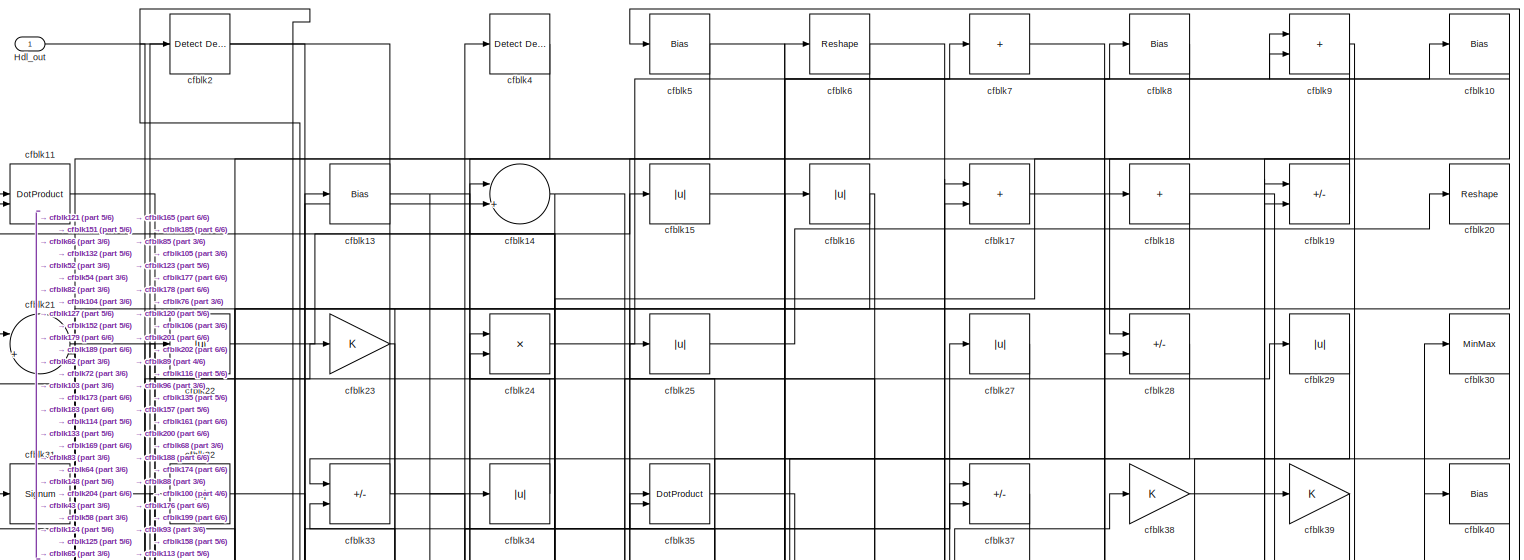
[diagram: root canvas - part 1/6, full width, top band]
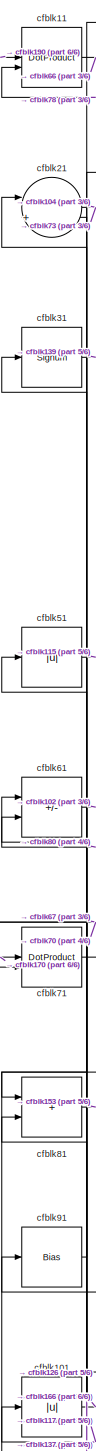
[diagram: root canvas - part 2/6, top left region]
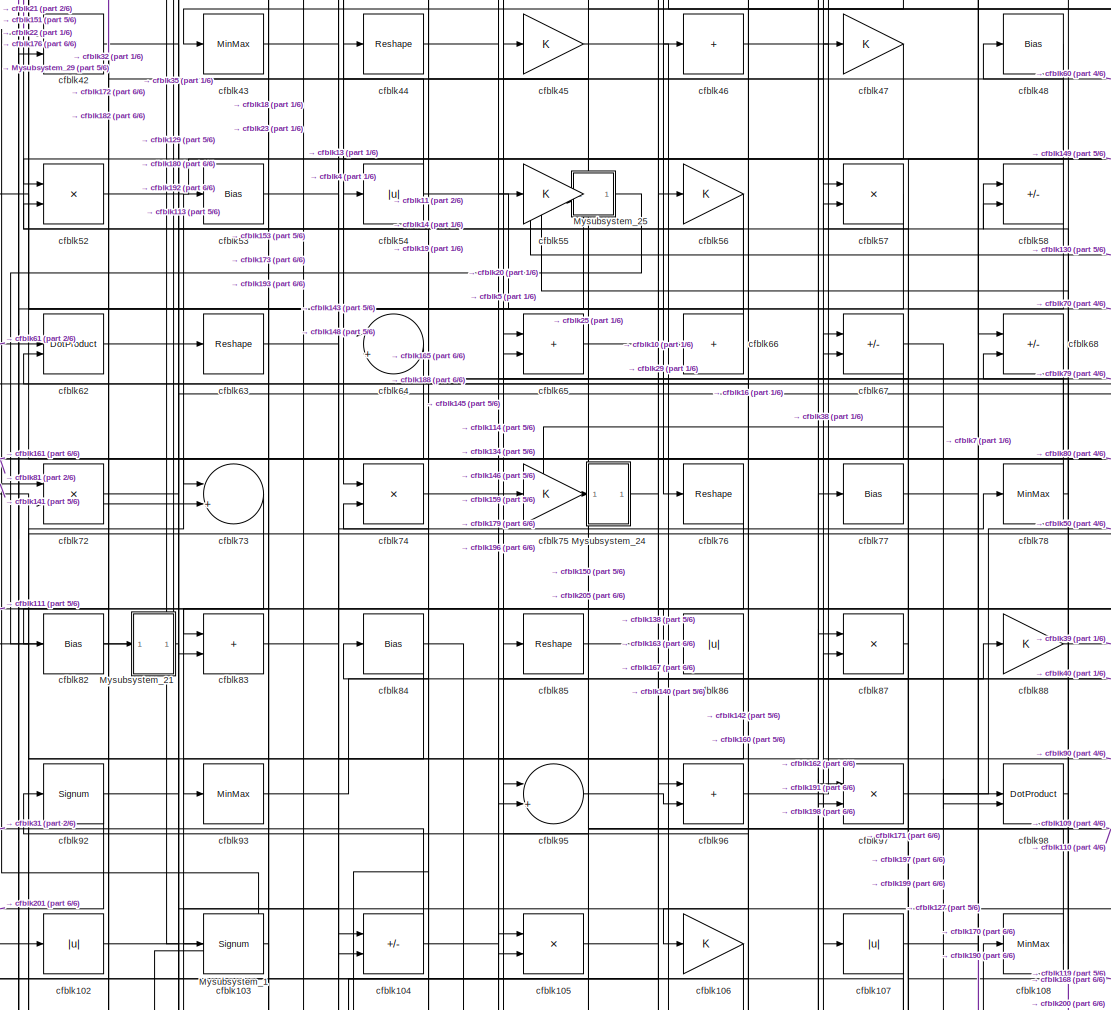
[diagram: root canvas - part 3/6, central region]
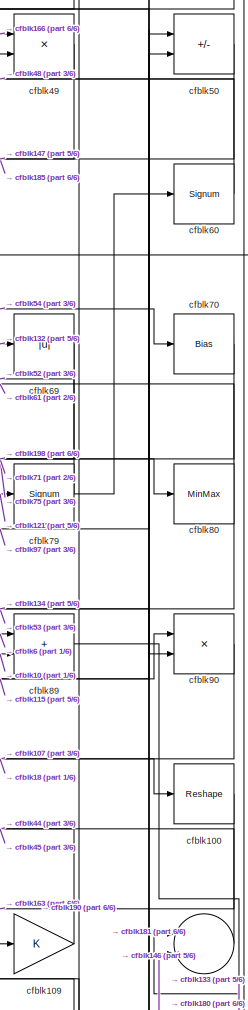
[diagram: root canvas - part 4/6, middle right region]
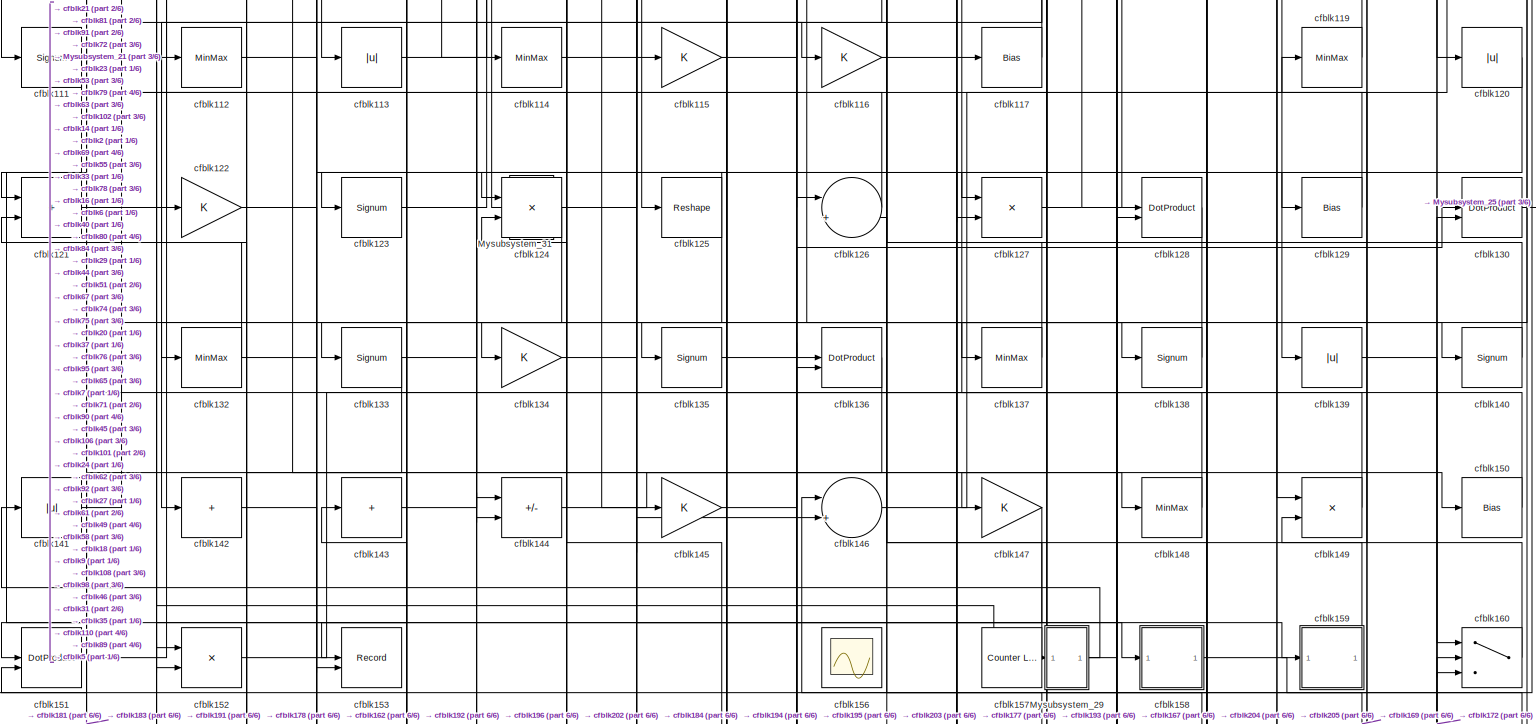
[diagram: root canvas - part 5/6, full width, middle band]
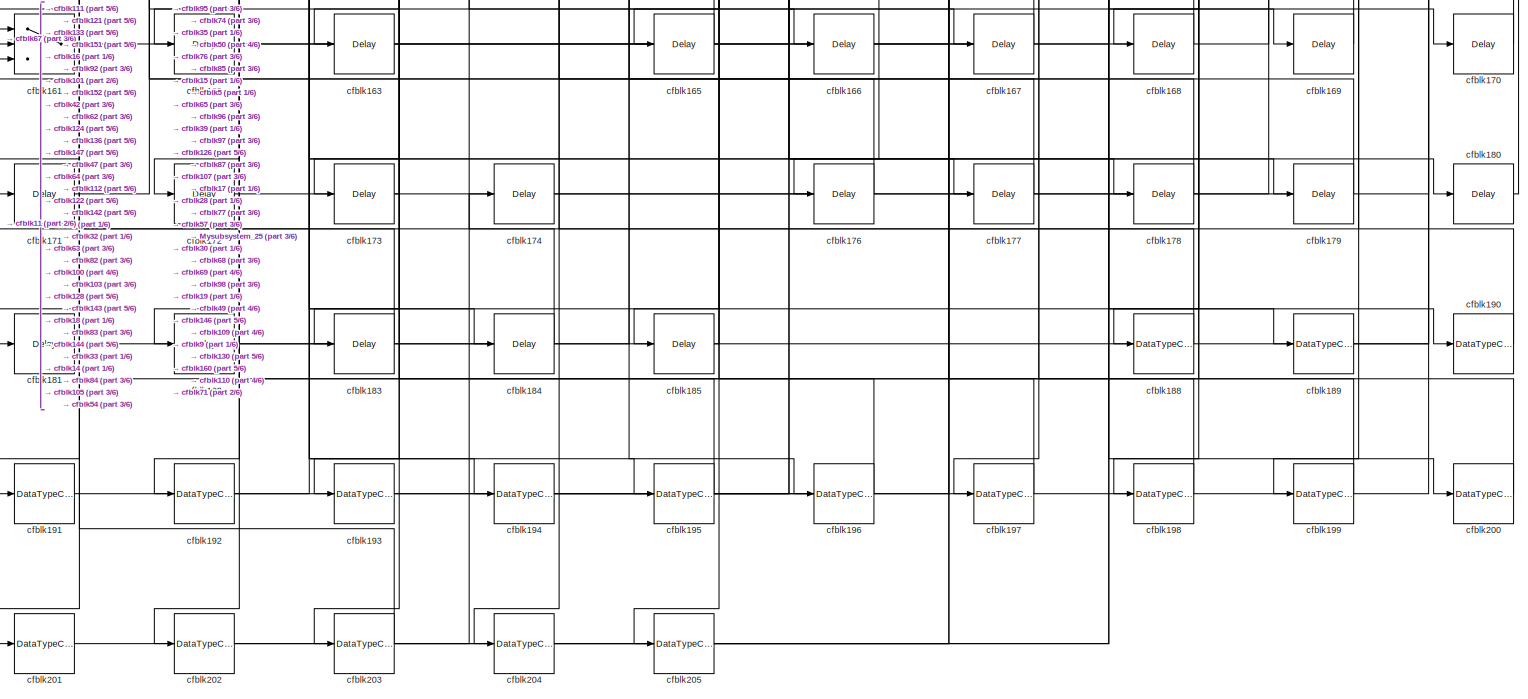
[diagram: root canvas - part 6/6, full width, bottom band]
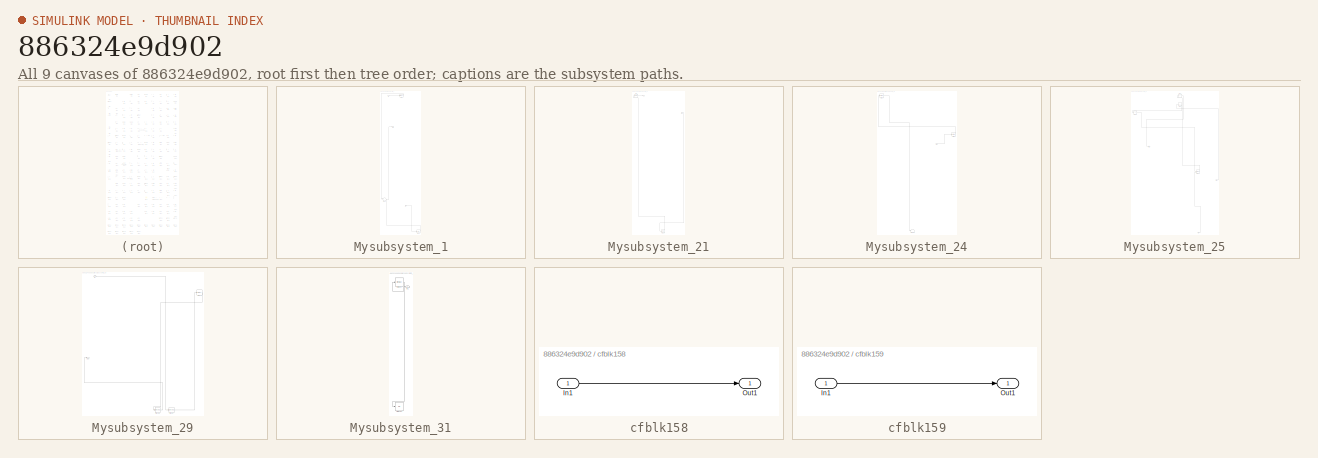
[diagram: thumbnail index - all 9 canvases of the model, root first then tree order]
MODEL slx_886324e9d902
KIND model
CONFIG AbsTol = auto
CONFIG EnableMultiTasking = off
CONFIG FixedStep = auto
CONFIG MaxStep = auto
CONFIG MinStep = auto
CONFIG RelTol = 1e-3
CONFIG SampleTimeConstraint = Unconstrained
CONFIG SolverName = VariableStepAuto
CONFIG StartTime = 0.0
CONFIG StopTime = 10.0
BLOCK [Outport] Hdl_out
  OutDataTypeStr = uint8
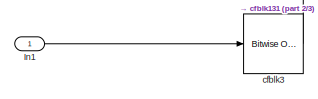
[diagram: Mysubsystem_1 - part 1/3, top center region]
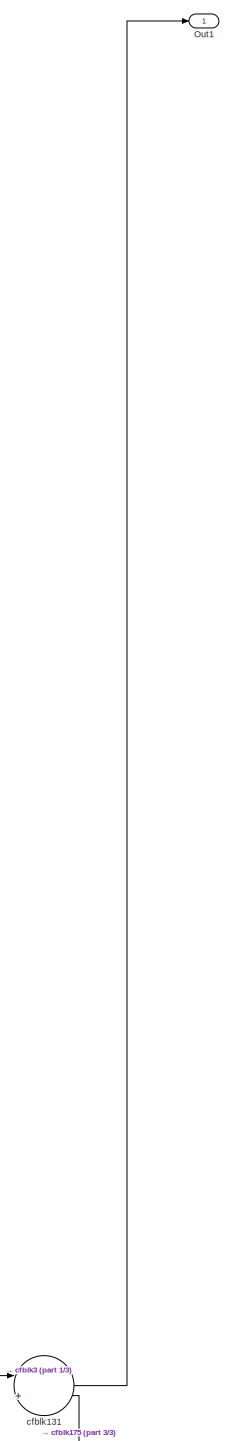
[diagram: Mysubsystem_1 - part 2/3, middle left region]
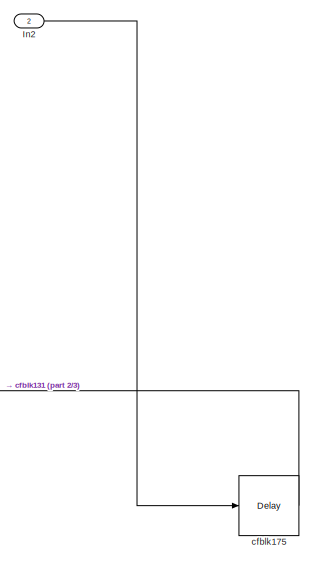
[diagram: Mysubsystem_1 - part 3/3, bottom right region]
BLOCK [SubSystem] Mysubsystem_1
  RTWFcnName = Mysubsystem_1
  RTWFcnNameOpts = User specified
  RTWFileNameOpts = Use function name
  RTWSystemCode = Reusable function
  TreatAsAtomicUnit = on
BLOCK [Inport] Mysubsystem_1/In1
BLOCK [Inport] Mysubsystem_1/In2
  Port = 2
BLOCK [Outport] Mysubsystem_1/Out1
BLOCK [Sum] Mysubsystem_1/cfblk131
  Inputs = |++
BLOCK [Delay] Mysubsystem_1/cfblk175
  InputPortMap = u0
  SampleTime = 1
BLOCK [Reference] Mysubsystem_1/cfblk3  REF=simulink/Logic and Bit
Operations/Bitwise
Operator
  LibrarySourceBlock = hdlsllib/Logic and Bit\nOperations/Bitwise\nOperator
  SourceBlock = simulink/Logic and Bit\nOperations/Bitwise\nOperator
  SourceType = Bitwise Operator
BLOCK [SubSystem] Mysubsystem_21
  RTWFcnName = Mysubsystem_21
  RTWFcnNameOpts = User specified
  RTWFileNameOpts = Use function name
  RTWSystemCode = Reusable function
  TreatAsAtomicUnit = on
BLOCK [Inport] Mysubsystem_21/In1
BLOCK [Outport] Mysubsystem_21/Y
BLOCK [Reference] Mysubsystem_21/cfblk1  REF=simulink/Logic and Bit
Operations/Detect
Decrease
  LibrarySourceBlock = hdlsllib/Logic and Bit\nOperations/Detect\nDecrease
  SourceBlock = simulink/Logic and Bit\nOperations/Detect\nDecrease
  SourceType = Detect Decrease
BLOCK [Delay] Mysubsystem_21/cfblk164
  InputPortMap = u0
  SampleTime = 1
BLOCK [SubSystem] Mysubsystem_24
  RTWFcnName = Mysubsystem_24
  RTWFcnNameOpts = User specified
  RTWFileNameOpts = Use function name
  RTWSystemCode = Reusable function
  TreatAsAtomicUnit = on
BLOCK [Inport] Mysubsystem_24/In1
BLOCK [MinMax] Mysubsystem_24/cfblk12
BLOCK [Terminator] Mysubsystem_24/cfblk155
BLOCK [MinMax] Mysubsystem_24/cfblk59
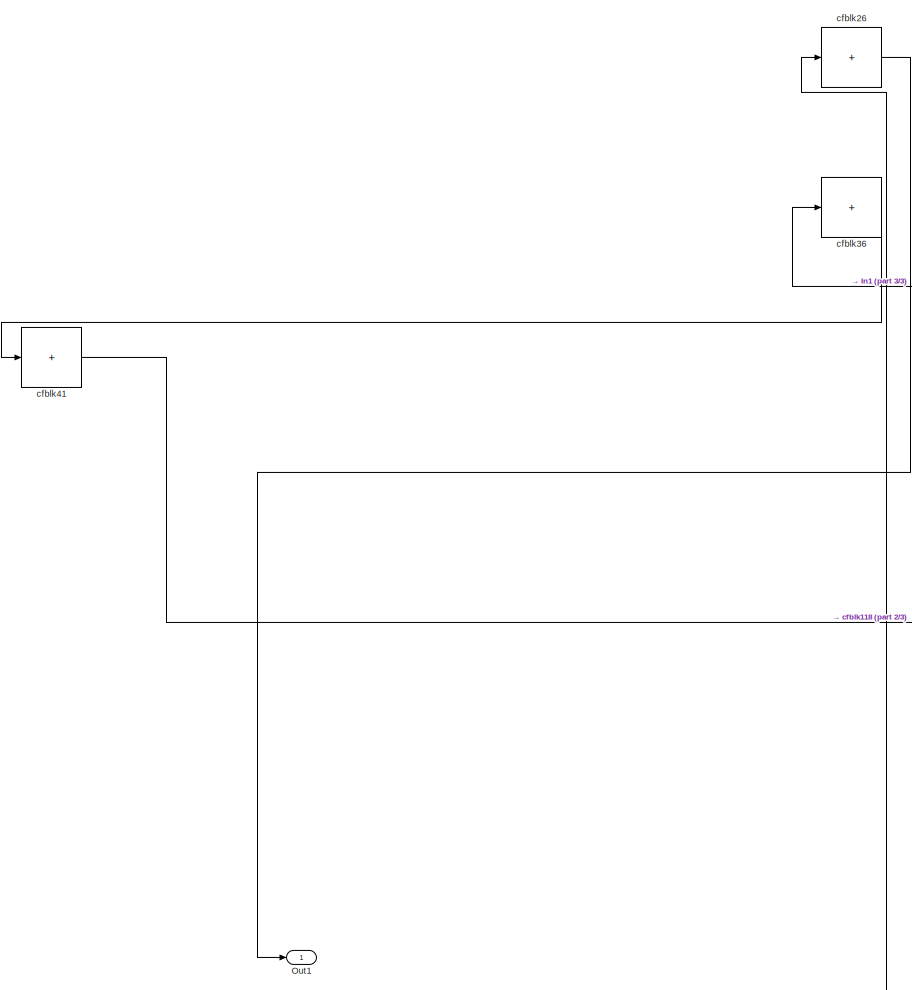
[diagram: Mysubsystem_25 - part 1/3, top left region]
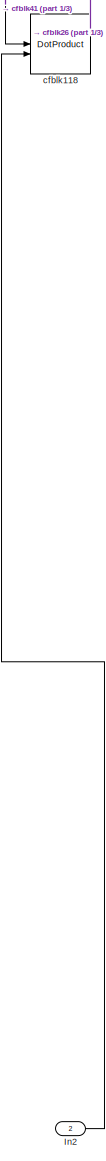
[diagram: Mysubsystem_25 - part 2/3, bottom right region]
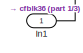
[diagram: Mysubsystem_25 - part 3/3, middle right region]
BLOCK [SubSystem] Mysubsystem_25
  RTWFcnName = Mysubsystem_25
  RTWFcnNameOpts = User specified
  RTWFileNameOpts = Use function name
  RTWSystemCode = Reusable function
  TreatAsAtomicUnit = on
BLOCK [Inport] Mysubsystem_25/In1
BLOCK [Inport] Mysubsystem_25/In2
  Port = 2
BLOCK [Outport] Mysubsystem_25/Out1
BLOCK [DotProduct] Mysubsystem_25/cfblk118
  OutDataTypeStr = Inherit: Inherit via internal rule
BLOCK [Sum] Mysubsystem_25/cfblk26
  IconShape = rectangular
  Inputs = +
BLOCK [Sum] Mysubsystem_25/cfblk36
  IconShape = rectangular
  Inputs = +
BLOCK [Sum] Mysubsystem_25/cfblk41
  IconShape = rectangular
  Inputs = +
BLOCK [SubSystem] Mysubsystem_29
  RTWFcnName = Mysubsystem_29
  RTWFcnNameOpts = User specified
  RTWFileNameOpts = Use function name
  RTWSystemCode = Reusable function
  TreatAsAtomicUnit = on
BLOCK [Inport] Mysubsystem_29/In1
BLOCK [Outport] Mysubsystem_29/Out1
BLOCK [DataTypeConversion] Mysubsystem_29/cfblk186
  OutDataTypeStr = uint8
  RndMeth = Floor
  SaturateOnIntegerOverflow = off
BLOCK [DataTypeConversion] Mysubsystem_29/cfblk187
  OutDataTypeStr = uint8
  RndMeth = Floor
  SaturateOnIntegerOverflow = off
BLOCK [MinMax] Mysubsystem_29/cfblk99
BLOCK [SubSystem] Mysubsystem_31
  RTWFcnName = Mysubsystem_31
  RTWFcnNameOpts = User specified
  RTWFileNameOpts = Use function name
  RTWSystemCode = Reusable function
  TreatAsAtomicUnit = on
BLOCK [Inport] Mysubsystem_31/In1
BLOCK [Display] Mysubsystem_31/cfblk154
  Decimation = 1
BLOCK [MinMax] Mysubsystem_31/cfblk94
BLOCK [Bias] cfblk10
  Bias = 0.0
  SaturateOnIntegerOverflow = off
BLOCK [Reshape] cfblk100
BLOCK [Abs] cfblk101
  OutDataTypeStr = uint8
  SaturateOnIntegerOverflow = off
BLOCK [Abs] cfblk102
  OutDataTypeStr = uint8
  SaturateOnIntegerOverflow = off
BLOCK [Signum] cfblk103
BLOCK [Sum] cfblk104
  IconShape = rectangular
  Inputs = +-
  OutDataTypeStr = uint8
BLOCK [Product] cfblk105
  Inputs = */
  OutDataTypeStr = uint8
  RndMeth = Zero
  SaturateOnIntegerOverflow = on
BLOCK [Gain] cfblk106
  OutDataTypeStr = uint8
BLOCK [Abs] cfblk107
  OutDataTypeStr = uint8
  SaturateOnIntegerOverflow = off
BLOCK [MinMax] cfblk108
  OutDataTypeStr = uint8
BLOCK [Gain] cfblk109
  OutDataTypeStr = uint8
BLOCK [DotProduct] cfblk11
  OutDataTypeStr = uint8
BLOCK [Sum] cfblk110
  Inputs = |++
  OutDataTypeStr = uint8
BLOCK [Signum] cfblk111
BLOCK [MinMax] cfblk112
  OutDataTypeStr = uint8
BLOCK [Abs] cfblk113
  OutDataTypeStr = uint8
  SaturateOnIntegerOverflow = off
BLOCK [MinMax] cfblk114
  OutDataTypeStr = uint8
BLOCK [Gain] cfblk115
  OutDataTypeStr = uint8
BLOCK [Gain] cfblk116
  OutDataTypeStr = uint8
BLOCK [Bias] cfblk117
  Bias = 0.0
  SaturateOnIntegerOverflow = off
BLOCK [MinMax] cfblk119
  OutDataTypeStr = uint8
BLOCK [Abs] cfblk120
  OutDataTypeStr = uint8
  SaturateOnIntegerOverflow = off
BLOCK [Sum] cfblk121
  IconShape = rectangular
  OutDataTypeStr = uint8
BLOCK [Gain] cfblk122
  OutDataTypeStr = uint8
BLOCK [Signum] cfblk123
BLOCK [Product] cfblk124
  Inputs = */
  OutDataTypeStr = uint8
  RndMeth = Zero
  SaturateOnIntegerOverflow = on
BLOCK [Reshape] cfblk125
BLOCK [Sum] cfblk126
  Inputs = |++
  OutDataTypeStr = uint8
BLOCK [Product] cfblk127
  Inputs = */
  OutDataTypeStr = uint8
  RndMeth = Zero
  SaturateOnIntegerOverflow = on
BLOCK [DotProduct] cfblk128
  OutDataTypeStr = uint8
BLOCK [Bias] cfblk129
  Bias = 0.0
  SaturateOnIntegerOverflow = off
BLOCK [Bias] cfblk13
  Bias = 0.0
  SaturateOnIntegerOverflow = off
BLOCK [DotProduct] cfblk130
  OutDataTypeStr = uint8
BLOCK [MinMax] cfblk132
  OutDataTypeStr = uint8
BLOCK [Signum] cfblk133
BLOCK [Gain] cfblk134
  OutDataTypeStr = uint8
BLOCK [Signum] cfblk135
BLOCK [DotProduct] cfblk136
  OutDataTypeStr = uint8
BLOCK [MinMax] cfblk137
  OutDataTypeStr = uint8
BLOCK [Signum] cfblk138
BLOCK [Abs] cfblk139
  OutDataTypeStr = uint8
  SaturateOnIntegerOverflow = off
BLOCK [Sum] cfblk14
  Inputs = |++
  OutDataTypeStr = uint8
BLOCK [Signum] cfblk140
BLOCK [Abs] cfblk141
  OutDataTypeStr = uint8
  SaturateOnIntegerOverflow = off
BLOCK [Sum] cfblk142
  IconShape = rectangular
  Inputs = +
  OutDataTypeStr = uint8
BLOCK [Sum] cfblk143
  IconShape = rectangular
  Inputs = +
  OutDataTypeStr = uint8
BLOCK [Sum] cfblk144
  IconShape = rectangular
  Inputs = +-
  OutDataTypeStr = uint8
BLOCK [Gain] cfblk145
  OutDataTypeStr = uint8
BLOCK [Sum] cfblk146
  Inputs = |++
  OutDataTypeStr = uint8
BLOCK [Gain] cfblk147
  OutDataTypeStr = uint8
BLOCK [MinMax] cfblk148
  OutDataTypeStr = uint8
BLOCK [Product] cfblk149
  Inputs = */
  OutDataTypeStr = uint8
  RndMeth = Zero
  SaturateOnIntegerOverflow = on
BLOCK [Abs] cfblk15
  OutDataTypeStr = uint8
  SaturateOnIntegerOverflow = off
BLOCK [Bias] cfblk150
  Bias = 0.0
  SaturateOnIntegerOverflow = off
BLOCK [DotProduct] cfblk151
  OutDataTypeStr = uint8
BLOCK [Product] cfblk152
  Inputs = */
  OutDataTypeStr = uint8
  RndMeth = Zero
  SaturateOnIntegerOverflow = on
BLOCK [Record] cfblk153
  CompatibilityTag = XY
  FileSettingsInternal = {"entries":[{"content":{"excelSettings":{"content":{},"type":"Streamout.ExcelSettings"}},"type":"Streamout.FileSettingStorage","uuid":""}],"packageUris":["http:\/\/schema.mathworks.com\/mf0\/streamout_blocks\/R2020a"],"version":"1.0"}
  Layout = [1 1]
  SignalsInternal = {"entries":[{"content":{"signals":[{"content":{"blockPath":[],"dimensions":[1],"domain":"","lineColor":"#a2142f","plots":[1],"port":1,"signalID":40592,"signalName":"cfblk55"},"type":"RecordBlkView.Signal","uuid":""},{"content":{"blockPath":[],"dimensions":[1],"domain":"","lineColor":"#139fff","plots":[1],"port":2,"signalID":40595,"signalName":"cfblk81"},"type":"RecordBlkView.Signal","uuid":""}]},"...<+142ch>
  VisualizationBindings = {"xyplotplugin":{"info":[{"series":[{"bindingParametersList":[{"parameter":"X-Axis","signalID":40592,"signalName":"cfblk55"},{"parameter":"Y-Axis","signalID":40595,"signalName":"cfblk81"}],"seriesID":9776}],"subplotID":1}]}}
  st = -1
BLOCK [Scope] cfblk156
  Floating = on
  NumInputPorts = 1
  ScopeSpecificationString = Simulink.scopes.TimeScopeBlockCfg('CurrentConfiguration', extmgr.ConfigurationSet(extmgr.Configuration('Core','General UI',true,'FigureColor',[0.156862745098039 0.156862745098039 0.156862745098039]),extmgr.Configuration('Core','Source UI',true),extmgr.Configuration('Sources','WiredSimulink',true,'DataLoggingVariableName','ScopeData1','DataLoggingSaveFormat','StructureWithTime','DataLoggingLimitDat...<+2713ch>
BLOCK [Reference] cfblk157  REF=hdlsllib/Sources/Counter
Limited
  SourceBlock = hdlsllib/Sources/Counter\nLimited
  SourceType = Counter Limited
BLOCK [SubSystem] cfblk158
  LibrarySourceBlock = hdlsllib/Ports &\nSubsystems/Subsystem
BLOCK [Inport] cfblk158/In1
BLOCK [Outport] cfblk158/Out1
BLOCK [SubSystem] cfblk159
  LibrarySourceBlock = hdlsllib/Ports &\nSubsystems/Subsystem
BLOCK [Inport] cfblk159/In1
BLOCK [Outport] cfblk159/Out1
BLOCK [Abs] cfblk16
  OutDataTypeStr = uint8
  SaturateOnIntegerOverflow = off
BLOCK [Switch] cfblk160
  InputSameDT = off
  OutDataTypeStr = uint8
  SaturateOnIntegerOverflow = off
BLOCK [Switch] cfblk161
  InputSameDT = off
  OutDataTypeStr = uint8
  SaturateOnIntegerOverflow = off
BLOCK [Delay] cfblk162
  InputPortMap = u0
  SampleTime = 1
BLOCK [Delay] cfblk163
  InputPortMap = u0
  SampleTime = 1
BLOCK [Delay] cfblk165
  InputPortMap = u0
  SampleTime = 1
BLOCK [Delay] cfblk166
  InputPortMap = u0
  SampleTime = 1
BLOCK [Delay] cfblk167
  InputPortMap = u0
  SampleTime = 1
BLOCK [Delay] cfblk168
  InputPortMap = u0
  SampleTime = 1
BLOCK [Delay] cfblk169
  InputPortMap = u0
  SampleTime = 1
BLOCK [Sum] cfblk17
  IconShape = rectangular
  OutDataTypeStr = uint8
BLOCK [Delay] cfblk170
  InputPortMap = u0
  SampleTime = 1
BLOCK [Delay] cfblk171
  InputPortMap = u0
  SampleTime = 1
BLOCK [Delay] cfblk172
  InputPortMap = u0
  SampleTime = 1
BLOCK [Delay] cfblk173
  InputPortMap = u0
  SampleTime = 1
BLOCK [Delay] cfblk174
  InputPortMap = u0
  SampleTime = 1
BLOCK [Delay] cfblk176
  InputPortMap = u0
  SampleTime = 1
BLOCK [Delay] cfblk177
  InputPortMap = u0
  SampleTime = 1
BLOCK [Delay] cfblk178
  InputPortMap = u0
  SampleTime = 1
BLOCK [Delay] cfblk179
  InputPortMap = u0
  SampleTime = 1
BLOCK [Sum] cfblk18
  IconShape = rectangular
  Inputs = +
  OutDataTypeStr = uint8
BLOCK [Delay] cfblk180
  InputPortMap = u0
  SampleTime = 1
BLOCK [Delay] cfblk181
  InputPortMap = u0
  SampleTime = 1
BLOCK [Delay] cfblk182
  InputPortMap = u0
  SampleTime = 1
BLOCK [Delay] cfblk183
  InputPortMap = u0
  SampleTime = 1
BLOCK [Delay] cfblk184
  InputPortMap = u0
  SampleTime = 1
BLOCK [Delay] cfblk185
  InputPortMap = u0
  SampleTime = 1
BLOCK [DataTypeConversion] cfblk188
  OutDataTypeStr = uint8
  RndMeth = Floor
  SaturateOnIntegerOverflow = off
BLOCK [DataTypeConversion] cfblk189
  OutDataTypeStr = uint8
  RndMeth = Floor
  SaturateOnIntegerOverflow = off
BLOCK [Sum] cfblk19
  IconShape = rectangular
  Inputs = +-
  OutDataTypeStr = uint8
BLOCK [DataTypeConversion] cfblk190
  OutDataTypeStr = uint8
  RndMeth = Floor
  SaturateOnIntegerOverflow = off
BLOCK [DataTypeConversion] cfblk191
  OutDataTypeStr = uint8
  RndMeth = Floor
  SaturateOnIntegerOverflow = off
BLOCK [DataTypeConversion] cfblk192
  OutDataTypeStr = uint8
  RndMeth = Floor
  SaturateOnIntegerOverflow = off
BLOCK [DataTypeConversion] cfblk193
  OutDataTypeStr = uint8
  RndMeth = Floor
  SaturateOnIntegerOverflow = off
BLOCK [DataTypeConversion] cfblk194
  OutDataTypeStr = uint8
  RndMeth = Floor
  SaturateOnIntegerOverflow = off
BLOCK [DataTypeConversion] cfblk195
  OutDataTypeStr = uint8
  RndMeth = Floor
  SaturateOnIntegerOverflow = off
BLOCK [DataTypeConversion] cfblk196
  OutDataTypeStr = uint8
  RndMeth = Floor
  SaturateOnIntegerOverflow = off
BLOCK [DataTypeConversion] cfblk197
  OutDataTypeStr = uint8
  RndMeth = Floor
  SaturateOnIntegerOverflow = off
BLOCK [DataTypeConversion] cfblk198
  OutDataTypeStr = uint8
  RndMeth = Floor
  SaturateOnIntegerOverflow = off
BLOCK [DataTypeConversion] cfblk199
  OutDataTypeStr = uint8
  RndMeth = Floor
  SaturateOnIntegerOverflow = off
BLOCK [Reference] cfblk2  REF=simulink/Logic and Bit
Operations/Detect
Decrease
  LibrarySourceBlock = hdlsllib/Logic and Bit\nOperations/Detect\nDecrease
  SourceBlock = simulink/Logic and Bit\nOperations/Detect\nDecrease
  SourceType = Detect Decrease
BLOCK [Reshape] cfblk20
BLOCK [DataTypeConversion] cfblk200
  OutDataTypeStr = uint8
  RndMeth = Floor
  SaturateOnIntegerOverflow = off
BLOCK [DataTypeConversion] cfblk201
  OutDataTypeStr = uint8
  RndMeth = Floor
  SaturateOnIntegerOverflow = off
BLOCK [DataTypeConversion] cfblk202
  OutDataTypeStr = uint8
  RndMeth = Floor
  SaturateOnIntegerOverflow = off
BLOCK [DataTypeConversion] cfblk203
  OutDataTypeStr = uint8
  RndMeth = Floor
  SaturateOnIntegerOverflow = off
BLOCK [DataTypeConversion] cfblk204
  OutDataTypeStr = uint8
  RndMeth = Floor
  SaturateOnIntegerOverflow = off
BLOCK [DataTypeConversion] cfblk205
  OutDataTypeStr = uint8
  RndMeth = Floor
  SaturateOnIntegerOverflow = off
BLOCK [Sum] cfblk21
  Inputs = |++
  OutDataTypeStr = uint8
BLOCK [Abs] cfblk22
  OutDataTypeStr = uint8
  SaturateOnIntegerOverflow = off
BLOCK [Gain] cfblk23
  OutDataTypeStr = uint8
BLOCK [Product] cfblk24
  Inputs = */
  OutDataTypeStr = uint8
  RndMeth = Zero
  SaturateOnIntegerOverflow = on
BLOCK [Abs] cfblk25
  OutDataTypeStr = uint8
  SaturateOnIntegerOverflow = off
BLOCK [Abs] cfblk27
  OutDataTypeStr = uint8
  SaturateOnIntegerOverflow = off
BLOCK [Sum] cfblk28
  IconShape = rectangular
  Inputs = +-
  OutDataTypeStr = uint8
BLOCK [Abs] cfblk29
  OutDataTypeStr = uint8
  SaturateOnIntegerOverflow = off
BLOCK [MinMax] cfblk30
  OutDataTypeStr = uint8
BLOCK [Signum] cfblk31
BLOCK [Abs] cfblk32
  OutDataTypeStr = uint8
  SaturateOnIntegerOverflow = off
BLOCK [Sum] cfblk33
  IconShape = rectangular
  Inputs = +-
  OutDataTypeStr = uint8
BLOCK [Abs] cfblk34
  OutDataTypeStr = uint8
  SaturateOnIntegerOverflow = off
BLOCK [DotProduct] cfblk35
  OutDataTypeStr = uint8
BLOCK [Sum] cfblk37
  IconShape = rectangular
  Inputs = +-
  OutDataTypeStr = uint8
BLOCK [Gain] cfblk38
  OutDataTypeStr = uint8
BLOCK [Gain] cfblk39
  OutDataTypeStr = uint8
BLOCK [Reference] cfblk4  REF=simulink/Logic and Bit
Operations/Detect
Decrease
  LibrarySourceBlock = hdlsllib/Logic and Bit\nOperations/Detect\nDecrease
  SourceBlock = simulink/Logic and Bit\nOperations/Detect\nDecrease
  SourceType = Detect Decrease
BLOCK [Bias] cfblk40
  Bias = 0.0
  SaturateOnIntegerOverflow = off
BLOCK [Product] cfblk42
  Inputs = */
  OutDataTypeStr = uint8
  RndMeth = Zero
  SaturateOnIntegerOverflow = on
BLOCK [MinMax] cfblk43
  OutDataTypeStr = uint8
BLOCK [Reshape] cfblk44
BLOCK [Gain] cfblk45
  OutDataTypeStr = uint8
BLOCK [Sum] cfblk46
  IconShape = rectangular
  Inputs = +
  OutDataTypeStr = uint8
BLOCK [Gain] cfblk47
  OutDataTypeStr = uint8
BLOCK [Bias] cfblk48
  Bias = 0.0
  SaturateOnIntegerOverflow = off
BLOCK [Product] cfblk49
  Inputs = */
  OutDataTypeStr = uint8
  RndMeth = Zero
  SaturateOnIntegerOverflow = on
BLOCK [Bias] cfblk5
  Bias = 0.0
  SaturateOnIntegerOverflow = off
BLOCK [Sum] cfblk50
  IconShape = rectangular
  Inputs = +-
  OutDataTypeStr = uint8
BLOCK [Abs] cfblk51
  OutDataTypeStr = uint8
  SaturateOnIntegerOverflow = off
BLOCK [Product] cfblk52
  Inputs = */
  OutDataTypeStr = uint8
  RndMeth = Zero
  SaturateOnIntegerOverflow = on
BLOCK [Bias] cfblk53
  Bias = 0.0
  SaturateOnIntegerOverflow = off
BLOCK [Abs] cfblk54
  OutDataTypeStr = uint8
  SaturateOnIntegerOverflow = off
BLOCK [Gain] cfblk55
  OutDataTypeStr = uint8
BLOCK [Gain] cfblk56
  OutDataTypeStr = uint8
BLOCK [Product] cfblk57
  Inputs = */
  OutDataTypeStr = uint8
  RndMeth = Zero
  SaturateOnIntegerOverflow = on
BLOCK [Sum] cfblk58
  IconShape = rectangular
  Inputs = +-
  OutDataTypeStr = uint8
BLOCK [Reshape] cfblk6
BLOCK [Signum] cfblk60
BLOCK [Sum] cfblk61
  IconShape = rectangular
  Inputs = +-
  OutDataTypeStr = uint8
BLOCK [DotProduct] cfblk62
  OutDataTypeStr = uint8
BLOCK [Reshape] cfblk63
BLOCK [Sum] cfblk64
  Inputs = |++
  OutDataTypeStr = uint8
BLOCK [Sum] cfblk65
  IconShape = rectangular
  OutDataTypeStr = uint8
BLOCK [Sum] cfblk66
  IconShape = rectangular
  Inputs = +
  OutDataTypeStr = uint8
BLOCK [Sum] cfblk67
  IconShape = rectangular
  Inputs = +-
  OutDataTypeStr = uint8
BLOCK [Sum] cfblk68
  IconShape = rectangular
  Inputs = +-
  OutDataTypeStr = uint8
BLOCK [Abs] cfblk69
  OutDataTypeStr = uint8
  SaturateOnIntegerOverflow = off
BLOCK [Sum] cfblk7
  IconShape = rectangular
  Inputs = +
  OutDataTypeStr = uint8
BLOCK [Bias] cfblk70
  Bias = 0.0
  SaturateOnIntegerOverflow = off
BLOCK [DotProduct] cfblk71
  OutDataTypeStr = uint8
BLOCK [Product] cfblk72
  Inputs = */
  OutDataTypeStr = uint8
  RndMeth = Zero
  SaturateOnIntegerOverflow = on
BLOCK [Sum] cfblk73
  Inputs = |++
  OutDataTypeStr = uint8
BLOCK [Product] cfblk74
  Inputs = */
  OutDataTypeStr = uint8
  RndMeth = Zero
  SaturateOnIntegerOverflow = on
BLOCK [Gain] cfblk75
  OutDataTypeStr = uint8
BLOCK [Reshape] cfblk76
BLOCK [Bias] cfblk77
  Bias = 0.0
  SaturateOnIntegerOverflow = off
BLOCK [MinMax] cfblk78
  OutDataTypeStr = uint8
BLOCK [Signum] cfblk79
BLOCK [Bias] cfblk8
  Bias = 0.0
  SaturateOnIntegerOverflow = off
BLOCK [MinMax] cfblk80
  OutDataTypeStr = uint8
BLOCK [Sum] cfblk81
  IconShape = rectangular
  OutDataTypeStr = uint8
BLOCK [Bias] cfblk82
  Bias = 0.0
  SaturateOnIntegerOverflow = off
BLOCK [Sum] cfblk83
  IconShape = rectangular
  OutDataTypeStr = uint8
BLOCK [Bias] cfblk84
  Bias = 0.0
  SaturateOnIntegerOverflow = off
BLOCK [Reshape] cfblk85
BLOCK [Abs] cfblk86
  OutDataTypeStr = uint8
  SaturateOnIntegerOverflow = off
BLOCK [Product] cfblk87
  Inputs = */
  OutDataTypeStr = uint8
  RndMeth = Zero
  SaturateOnIntegerOverflow = on
BLOCK [Gain] cfblk88
  OutDataTypeStr = uint8
BLOCK [Sum] cfblk89
  IconShape = rectangular
  OutDataTypeStr = uint8
BLOCK [Sum] cfblk9
  IconShape = rectangular
  OutDataTypeStr = uint8
BLOCK [Product] cfblk90
  Inputs = */
  OutDataTypeStr = uint8
  RndMeth = Zero
  SaturateOnIntegerOverflow = on
BLOCK [Bias] cfblk91
  Bias = 0.0
  SaturateOnIntegerOverflow = off
BLOCK [Signum] cfblk92
BLOCK [MinMax] cfblk93
  OutDataTypeStr = uint8
BLOCK [Sum] cfblk95
  Inputs = |++
  OutDataTypeStr = uint8
BLOCK [Sum] cfblk96
  IconShape = rectangular
  OutDataTypeStr = uint8
BLOCK [Product] cfblk97
  Inputs = */
  OutDataTypeStr = uint8
  RndMeth = Zero
  SaturateOnIntegerOverflow = on
BLOCK [DotProduct] cfblk98
  OutDataTypeStr = uint8
LINE Mysubsystem_1/In1:1 -> Mysubsystem_1/cfblk3:1
LINE Mysubsystem_1/In2:1 -> Mysubsystem_1/cfblk175:1
LINE Mysubsystem_1/cfblk131:1 -> Mysubsystem_1/Out1:1
LINE Mysubsystem_1/cfblk175:1 -> Mysubsystem_1/cfblk131:2
LINE Mysubsystem_1/cfblk3:1 -> Mysubsystem_1/cfblk131:1
LINE Mysubsystem_1:1 -> cfblk42:1
LINE Mysubsystem_21/In1:1 -> Mysubsystem_21/cfblk164:1
LINE Mysubsystem_21/cfblk164:1 -> Mysubsystem_21/cfblk1:1
LINE Mysubsystem_21/cfblk1:1 -> Mysubsystem_21/Y:1
NET Mysubsystem_21:1 -> Mysubsystem_1:1, Mysubsystem_29:1, cfblk83:2
LINE Mysubsystem_24/In1:1 -> Mysubsystem_24/cfblk59:1
LINE Mysubsystem_24/cfblk12:1 -> Mysubsystem_24/cfblk155:1
LINE Mysubsystem_24/cfblk59:1 -> Mysubsystem_24/cfblk12:1
LINE Mysubsystem_25/In1:1 -> Mysubsystem_25/cfblk36:1
LINE Mysubsystem_25/In2:1 -> Mysubsystem_25/cfblk118:2
LINE Mysubsystem_25/cfblk118:1 -> Mysubsystem_25/cfblk26:1
LINE Mysubsystem_25/cfblk26:1 -> Mysubsystem_25/Out1:1
LINE Mysubsystem_25/cfblk36:1 -> Mysubsystem_25/cfblk41:1
LINE Mysubsystem_25/cfblk41:1 -> Mysubsystem_25/cfblk118:1
LINE Mysubsystem_25:1 -> Mysubsystem_21:1
LINE Mysubsystem_29/In1:1 -> Mysubsystem_29/cfblk187:1
LINE Mysubsystem_29/cfblk186:1 -> Mysubsystem_29/Out1:1
LINE Mysubsystem_29/cfblk187:1 -> Mysubsystem_29/cfblk99:1
LINE Mysubsystem_29/cfblk99:1 -> Mysubsystem_29/cfblk186:1
LINE Mysubsystem_29:1 -> cfblk141:1
LINE Mysubsystem_31/In1:1 -> Mysubsystem_31/cfblk94:1
LINE Mysubsystem_31/cfblk94:1 -> Mysubsystem_31/cfblk154:1
LINE cfblk100:1 -> cfblk163:1
LINE cfblk101:1 -> cfblk166:1
LINE cfblk102:1 -> cfblk129:1
LINE cfblk103:1 -> cfblk193:1
NET cfblk104:1 -> cfblk31:1, cfblk55:1, cfblk88:1
LINE cfblk105:1 -> cfblk10:1
LINE cfblk106:1 -> cfblk142:1
NET cfblk107:1 -> cfblk170:1, cfblk171:1
LINE cfblk108:1 -> cfblk65:2
LINE cfblk109:1 -> cfblk44:1
NET cfblk10:1 -> cfblk89:2, cfblk9:2
LINE cfblk110:1 -> cfblk45:1
NET cfblk111:1 -> cfblk158:1, cfblk191:1
LINE cfblk112:1 -> cfblk195:1
LINE cfblk113:1 -> cfblk6:1
LINE cfblk114:1 -> cfblk75:1
LINE cfblk115:1 -> cfblk90:1
LINE cfblk116:1 -> cfblk27:1
LINE cfblk117:1 -> cfblk61:2
LINE cfblk119:1 -> cfblk67:2
LINE cfblk11:1 -> cfblk66:1
LINE cfblk120:1 -> cfblk144:2
LINE cfblk121:1 -> cfblk79:1
LINE cfblk122:1 -> cfblk184:1
LINE cfblk123:1 -> cfblk16:1
NET cfblk124:1 -> cfblk202:1, cfblk29:1
NET cfblk125:1 -> cfblk123:1, cfblk151:1
LINE cfblk126:1 -> cfblk21:1
NET cfblk127:1 -> cfblk108:1, cfblk98:1
LINE cfblk128:1 -> cfblk203:1
LINE cfblk129:1 -> cfblk91:1
LINE cfblk130:1 -> Mysubsystem_25:1
NET cfblk132:1 -> cfblk21:2, cfblk69:1
NET cfblk133:1 -> cfblk181:1, cfblk37:1
LINE cfblk134:1 -> cfblk67:1
LINE cfblk135:1 -> cfblk7:1
LINE cfblk136:1 -> cfblk192:1
LINE cfblk137:1 -> cfblk101:1
LINE cfblk138:1 -> cfblk137:1
LINE cfblk139:1 -> cfblk160:1
NET cfblk13:1 -> cfblk34:1, cfblk54:1
LINE cfblk140:1 -> cfblk62:2
LINE cfblk141:1 -> cfblk72:1
LINE cfblk142:1 -> cfblk194:1
LINE cfblk143:1 -> cfblk78:1
LINE cfblk144:1 -> cfblk150:1
LINE cfblk145:1 -> cfblk130:1
LINE cfblk146:1 -> cfblk110:2
NET cfblk147:1 -> cfblk152:2, cfblk162:1
NET cfblk148:1 -> Mysubsystem_31:1, cfblk24:1
LINE cfblk149:1 -> cfblk117:1
NET cfblk14:1 -> cfblk116:1, cfblk204:1
NET cfblk150:1 -> cfblk81:2, cfblk95:1
NET cfblk151:1 -> cfblk23:1, cfblk53:1
NET cfblk152:1 -> cfblk122:1, cfblk14:2, cfblk18:1
NET cfblk157:1 -> cfblk24:2, cfblk9:1
LINE cfblk158/In1:1 -> cfblk158/Out1:1
LINE cfblk158:1 -> cfblk5:1
LINE cfblk159/In1:1 -> cfblk159/Out1:1
LINE cfblk159:1 -> cfblk149:2
LINE cfblk15:1 -> cfblk178:1
NET cfblk160:1 -> cfblk119:1, cfblk92:1
LINE cfblk161:1 -> cfblk28:2
LINE cfblk162:1 -> cfblk97:1
LINE cfblk163:1 -> cfblk96:1
LINE cfblk165:1 -> cfblk74:2
LINE cfblk166:1 -> cfblk49:1
LINE cfblk167:1 -> cfblk126:2
LINE cfblk168:1 -> cfblk57:2
LINE cfblk169:1 -> cfblk146:1
NET cfblk16:1 -> cfblk106:1, cfblk161:1
LINE cfblk170:1 -> cfblk71:1
LINE cfblk171:1 -> cfblk42:2
LINE cfblk172:1 -> cfblk160:2
LINE cfblk173:1 -> cfblk33:2
LINE cfblk174:1 -> cfblk19:2
LINE cfblk176:1 -> cfblk62:1
LINE cfblk177:1 -> cfblk124:2
LINE cfblk178:1 -> cfblk152:1
LINE cfblk179:1 -> cfblk105:1
LINE cfblk17:1 -> cfblk200:1
LINE cfblk180:1 -> cfblk110:1
LINE cfblk181:1 -> cfblk50:1
LINE cfblk182:1 -> cfblk95:2
LINE cfblk183:1 -> cfblk121:2
LINE cfblk184:1 -> cfblk144:1
LINE cfblk185:1 -> cfblk35:2
LINE cfblk188:1 -> cfblk84:1
LINE cfblk189:1 -> cfblk30:1
NET cfblk18:1 -> cfblk100:1, cfblk183:1, cfblk52:1
NET cfblk190:1 -> cfblk109:1, cfblk11:1, cfblk68:2
LINE cfblk191:1 -> cfblk77:1
LINE cfblk192:1 -> cfblk63:1
LINE cfblk193:1 -> cfblk136:1
LINE cfblk194:1 -> cfblk136:2
NET cfblk195:1 -> cfblk130:2, cfblk143:1, cfblk160:3
LINE cfblk196:1 -> cfblk112:1
LINE cfblk197:1 -> cfblk85:1
LINE cfblk198:1 -> cfblk87:1
LINE cfblk199:1 -> cfblk87:2
LINE cfblk19:1 -> cfblk43:1
NET cfblk200:1 -> Mysubsystem_25:2, cfblk161:3
LINE cfblk201:1 -> cfblk17:1
LINE cfblk202:1 -> cfblk17:2
NET cfblk203:1 -> cfblk151:2, cfblk174:1
LINE cfblk204:1 -> cfblk128:1
LINE cfblk205:1 -> cfblk128:2
NET cfblk20:1 -> cfblk125:1, cfblk82:1
NET cfblk21:1 -> cfblk104:1, cfblk73:2
LINE cfblk22:1 -> cfblk15:1
LINE cfblk23:1 -> cfblk103:1
LINE cfblk24:1 -> cfblk8:1
LINE cfblk25:1 -> cfblk20:1
LINE cfblk27:1 -> cfblk33:1
LINE cfblk28:1 -> cfblk165:1
LINE cfblk29:1 -> cfblk76:1
NET cfblk2:1 -> cfblk127:2, cfblk189:1
LINE cfblk30:1 -> cfblk188:1
LINE cfblk31:1 -> cfblk139:1
NET cfblk32:1 -> cfblk104:2, cfblk179:1
NET cfblk33:1 -> Hdl_out:1, cfblk114:1, cfblk169:1, cfblk37:2
LINE cfblk34:1 -> cfblk2:1
LINE cfblk35:1 -> cfblk120:1
LINE cfblk37:1 -> cfblk135:1
LINE cfblk38:1 -> cfblk19:1
LINE cfblk39:1 -> cfblk176:1
LINE cfblk40:1 -> cfblk124:1
LINE cfblk42:1 -> cfblk86:1
LINE cfblk43:1 -> cfblk97:2
LINE cfblk44:1 -> cfblk159:1
LINE cfblk45:1 -> cfblk140:1
LINE cfblk46:1 -> cfblk149:1
LINE cfblk47:1 -> cfblk182:1
LINE cfblk48:1 -> cfblk74:1
LINE cfblk49:1 -> cfblk147:1
LINE cfblk4:1 -> cfblk64:1
NET cfblk50:1 -> cfblk185:1, cfblk49:2
LINE cfblk51:1 -> cfblk115:1
NET cfblk52:1 -> cfblk47:1, cfblk57:1
LINE cfblk53:1 -> cfblk90:2
NET cfblk54:1 -> cfblk196:1, cfblk32:1, cfblk70:1
LINE cfblk55:1 -> cfblk153:1
NET cfblk56:1 -> cfblk64:2, cfblk73:1
LINE cfblk57:1 -> cfblk72:2
NET cfblk58:1 -> cfblk127:1, cfblk14:1
NET cfblk5:1 -> cfblk177:1, cfblk65:1
LINE cfblk60:1 -> cfblk48:1
LINE cfblk61:1 -> cfblk102:1
LINE cfblk62:1 -> cfblk35:1
NET cfblk63:1 -> Mysubsystem_1:2, cfblk148:1
LINE cfblk64:1 -> cfblk172:1
NET cfblk65:1 -> cfblk138:1, cfblk167:1
LINE cfblk66:1 -> cfblk22:1
NET cfblk67:1 -> Mysubsystem_24:1, cfblk161:2, cfblk81:1, cfblk98:2
LINE cfblk68:1 -> cfblk83:1
LINE cfblk69:1 -> cfblk198:1
NET cfblk6:1 -> cfblk132:1, cfblk89:1
LINE cfblk70:1 -> cfblk71:2
LINE cfblk71:1 -> cfblk126:1
LINE cfblk72:1 -> cfblk13:1
LINE cfblk73:1 -> cfblk93:1
LINE cfblk74:1 -> cfblk146:2
LINE cfblk75:1 -> cfblk80:1
NET cfblk76:1 -> cfblk111:1, cfblk205:1
LINE cfblk77:1 -> cfblk190:1
NET cfblk78:1 -> cfblk11:2, cfblk46:1, cfblk58:2
NET cfblk79:1 -> cfblk52:2, cfblk60:1
LINE cfblk7:1 -> cfblk68:1
NET cfblk80:1 -> cfblk134:1, cfblk61:1
LINE cfblk81:1 -> cfblk153:2
LINE cfblk82:1 -> cfblk180:1
NET cfblk83:1 -> cfblk173:1, cfblk4:1
NET cfblk84:1 -> cfblk113:1, cfblk145:1
NET cfblk85:1 -> cfblk25:1, cfblk56:1
LINE cfblk86:1 -> cfblk105:2
LINE cfblk87:1 -> cfblk197:1
LINE cfblk88:1 -> cfblk39:1
LINE cfblk89:1 -> cfblk133:1
LINE cfblk8:1 -> cfblk28:1
LINE cfblk90:1 -> cfblk107:1
LINE cfblk91:1 -> cfblk51:1
NET cfblk92:1 -> cfblk201:1, cfblk58:1
LINE cfblk93:1 -> cfblk40:1
LINE cfblk95:1 -> cfblk96:2
LINE cfblk96:1 -> cfblk38:1
LINE cfblk97:1 -> cfblk50:2
LINE cfblk98:1 -> cfblk168:1
NET cfblk9:1 -> cfblk121:1, cfblk199:1
note: NET lines group one-source signal fan-out (src -> all destinations, sorted); 1:1 wires keep LINE
